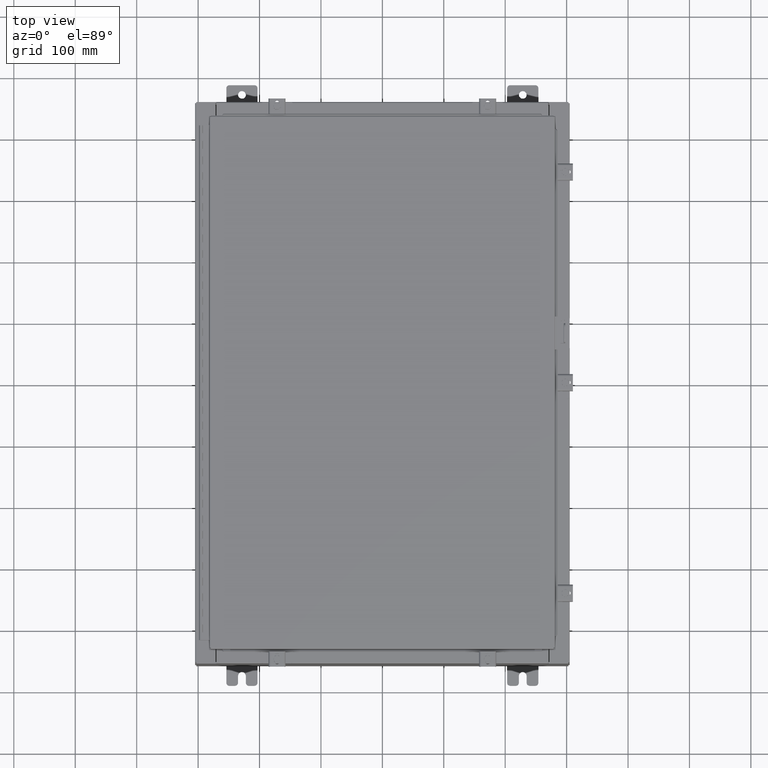
[diagram: clean part render]
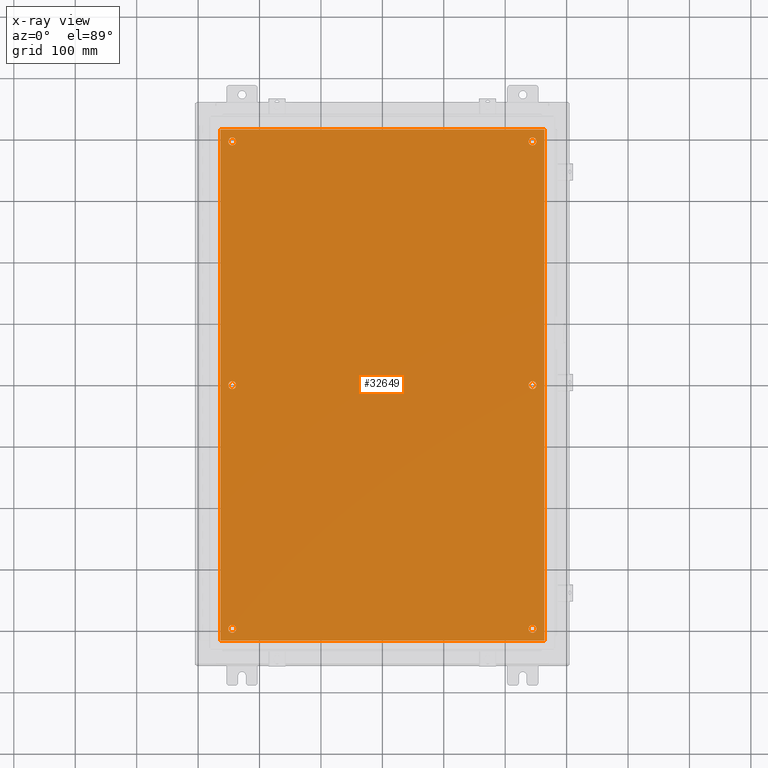
[diagram: x-ray — body ghosted, one internal face saturated and labeled with its STEP entity id]
A machine part, top view, then the same camera in x-ray: the body is ghosted and one INTERNAL B-rep face — a face not visible from any outside direction — is saturated and labeled: STEP entity #32649.
In plain terms, the highlighted planar face has unit normal (0, 0, -1).
Its self-contained STEP definition (entity closure, byte-faithful):
#27 = DIRECTION ( 'NONE',  ( -0.0000000000000000000, -0.0000000000000000000, 1.000000000000000000 ) ) ;
#214 = CARTESIAN_POINT ( 'NONE',  ( -9.625000000000007100, 15.62500000000000200, -0.1040000000000000400 ) ) ;
#269 = VERTEX_POINT ( 'NONE', #41505 ) ;
#471 = DIRECTION ( 'NONE',  ( -0.0000000000000000000, -0.0000000000000000000, 1.000000000000000000 ) ) ;
#501 = EDGE_CURVE ( 'NONE', #1906, #40323, #20869, .T. ) ;
#764 = CARTESIAN_POINT ( 'NONE',  ( -9.375000000000007100, 15.62500000000000200, -0.1040000000000000400 ) ) ;
#1237 = CARTESIAN_POINT ( 'NONE',  ( 9.875000000000007100, 2.620299400612403500E-015, -0.1040000000000000400 ) ) ;
#1278 = ORIENTED_EDGE ( 'NONE', *, *, #18711, .T. ) ;
#1472 = VERTEX_POINT ( 'NONE', #16004 ) ;
#1502 = CIRCLE ( 'NONE', #35119, 0.2500000000000008900 ) ;
#1885 = AXIS2_PLACEMENT_3D ( 'NONE', #19715, #27, #23010 ) ;
#1906 = VERTEX_POINT ( 'NONE', #17665 ) ;
#2078 = CARTESIAN_POINT ( 'NONE',  ( -9.875000000000005300, 2.934704822324310800E-016, -0.1040000000000000400 ) ) ;
#2215 = DIRECTION ( 'NONE',  ( -0.0000000000000000000, -0.0000000000000000000, 1.000000000000000000 ) ) ;
#2361 = EDGE_LOOP ( 'NONE', ( #29940, #34150, #5531, #32927 ) ) ;
#2452 = DIRECTION ( 'NONE',  ( -1.000000000000000000, 0.0000000000000000000, 0.0000000000000000000 ) ) ;
#2496 = CARTESIAN_POINT ( 'NONE',  ( -10.38300000000000100, 16.38300000000000300, -0.1039999999999988200 ) ) ;
#2713 = EDGE_LOOP ( 'NONE', ( #39928, #5752 ) ) ;
#3042 = PLANE ( 'NONE',  #24262 ) ;
#3536 = DIRECTION ( 'NONE',  ( -1.000000000000000000, 0.0000000000000000000, 0.0000000000000000000 ) ) ;
#3804 = EDGE_CURVE ( 'NONE', #1472, #22614, #17060, .T. ) ;
#4023 = VERTEX_POINT ( 'NONE', #16526 ) ;
#4193 = CARTESIAN_POINT ( 'NONE',  ( -9.625000000000007100, 15.62500000000000200, -0.1040000000000000400 ) ) ;
#4306 = ORIENTED_EDGE ( 'NONE', *, *, #40174, .T. ) ;
#4681 = CIRCLE ( 'NONE', #23019, 0.2499999999999998100 ) ;
#4744 = LINE ( 'NONE', #6897, #21178 ) ;
#5501 = VERTEX_POINT ( 'NONE', #41474 ) ;
#5513 = CARTESIAN_POINT ( 'NONE',  ( -10.38300000000000100, -16.38299999999999600, -0.1040000000000008600 ) ) ;
#5518 = EDGE_CURVE ( 'NONE', #21121, #39907, #1502, .T. ) ;
#5531 = ORIENTED_EDGE ( 'NONE', *, *, #39052, .F. ) ;
#5752 = ORIENTED_EDGE ( 'NONE', *, *, #40925, .T. ) ;
#5987 = VERTEX_POINT ( 'NONE', #20855 ) ;
#5995 = AXIS2_PLACEMENT_3D ( 'NONE', #19644, #42662, #22951 ) ;
#6209 = ORIENTED_EDGE ( 'NONE', *, *, #15000, .T. ) ;
#6344 = DIRECTION ( 'NONE',  ( 0.0000000000000000000, 0.0000000000000000000, -1.000000000000000000 ) ) ;
#6488 = EDGE_LOOP ( 'NONE', ( #32252, #42549 ) ) ;
#6897 = CARTESIAN_POINT ( 'NONE',  ( 10.50000000000000400, 16.38299999999999900, -0.1040000000000008600 ) ) ;
#6990 = EDGE_CURVE ( 'NONE', #40323, #1906, #42029, .T. ) ;
#7076 = CARTESIAN_POINT ( 'NONE',  ( 9.375000000000007100, 2.650915570591087300E-015, -0.1040000000000000400 ) ) ;
#7332 = AXIS2_PLACEMENT_3D ( 'NONE', #14475, #37442, #17802 ) ;
#7498 = DIRECTION ( 'NONE',  ( -1.000000000000000000, 0.0000000000000000000, 0.0000000000000000000 ) ) ;
#7661 = FACE_BOUND ( 'NONE', #38178, .T. ) ;
#8055 = EDGE_CURVE ( 'NONE', #5501, #17191, #29708, .T. ) ;
#8177 = DIRECTION ( 'NONE',  ( -0.0000000000000000000, -0.0000000000000000000, 1.000000000000000000 ) ) ;
#8695 = FACE_BOUND ( 'NONE', #6488, .T. ) ;
#9105 = DIRECTION ( 'NONE',  ( 0.0000000000000000000, -1.000000000000000000, 0.0000000000000000000 ) ) ;
#9597 = EDGE_CURVE ( 'NONE', #4023, #24797, #14655, .T. ) ;
#9841 = CARTESIAN_POINT ( 'NONE',  ( -9.625000000000005300, 2.628543122537473900E-016, -0.1040000000000000400 ) ) ;
#10199 = DIRECTION ( 'NONE',  ( -1.000000000000000000, -0.0000000000000000000, -0.0000000000000000000 ) ) ;
#10758 = CARTESIAN_POINT ( 'NONE',  ( -9.625000000000007100, -15.62500000000000200, -0.1040000000000000400 ) ) ;
#10955 = EDGE_CURVE ( 'NONE', #24797, #1472, #17181, .T. ) ;
#11063 = CARTESIAN_POINT ( 'NONE',  ( 9.625000000000007100, 2.620299400612403500E-015, -0.1040000000000000400 ) ) ;
#12123 = DIRECTION ( 'NONE',  ( 0.0000000000000000000, 1.000000000000000000, 0.0000000000000000000 ) ) ;
#13117 = EDGE_LOOP ( 'NONE', ( #1278, #6209 ) ) ;
#13162 = DIRECTION ( 'NONE',  ( -1.000000000000000000, 0.0000000000000000000, 0.0000000000000000000 ) ) ;
#13594 = CIRCLE ( 'NONE', #18504, 0.2499999999999998100 ) ;
#14073 = DIRECTION ( 'NONE',  ( -1.000000000000000000, 0.0000000000000000000, 0.0000000000000000000 ) ) ;
#14116 = AXIS2_PLACEMENT_3D ( 'NONE', #10758, #33747, #14073 ) ;
#14365 = DIRECTION ( 'NONE',  ( -1.000000000000000000, 0.0000000000000000000, 0.0000000000000000000 ) ) ;
#14475 = CARTESIAN_POINT ( 'NONE',  ( 9.625000000000007100, 15.62500000000000200, -0.1040000000000000400 ) ) ;
#14655 = LINE ( 'NONE', #2496, #23379 ) ;
#14770 = ORIENTED_EDGE ( 'NONE', *, *, #6990, .T. ) ;
#15000 = EDGE_CURVE ( 'NONE', #24105, #42432, #13594, .T. ) ;
#15130 = EDGE_CURVE ( 'NONE', #42190, #269, #18194, .T. ) ;
#16004 = CARTESIAN_POINT ( 'NONE',  ( 10.38300000000000100, -16.38299999999999600, -0.1040000000000008600 ) ) ;
#16413 = FACE_BOUND ( 'NONE', #20166, .T. ) ;
#16526 = CARTESIAN_POINT ( 'NONE',  ( -10.38300000000000100, 16.38300000000000300, -0.1039999999999988200 ) ) ;
#16935 = EDGE_CURVE ( 'NONE', #26938, #5987, #4681, .T. ) ;
#17060 = LINE ( 'NONE', #28462, #41241 ) ;
#17181 = LINE ( 'NONE', #26969, #42395 ) ;
#17191 = VERTEX_POINT ( 'NONE', #764 ) ;
#17427 = FACE_BOUND ( 'NONE', #28388, .T. ) ;
#17554 = CARTESIAN_POINT ( 'NONE',  ( 9.375000000000007100, 15.62500000000000200, -0.1040000000000000400 ) ) ;
#17665 = CARTESIAN_POINT ( 'NONE',  ( 9.875000000000007100, 15.62500000000000200, -0.1040000000000000400 ) ) ;
#17802 = DIRECTION ( 'NONE',  ( -1.000000000000000000, 0.0000000000000000000, 0.0000000000000000000 ) ) ;
#18194 = CIRCLE ( 'NONE', #36118, 0.2500000000000008900 ) ;
#18504 = AXIS2_PLACEMENT_3D ( 'NONE', #11063, #34035, #14365 ) ;
#18638 = CIRCLE ( 'NONE', #39652, 0.2500000000000008900 ) ;
#18711 = EDGE_CURVE ( 'NONE', #42432, #24105, #24038, .T. ) ;
#19067 = ORIENTED_EDGE ( 'NONE', *, *, #8055, .T. ) ;
#19644 = CARTESIAN_POINT ( 'NONE',  ( 9.625000000000007100, 15.62500000000000200, -0.1040000000000000400 ) ) ;
#19715 = CARTESIAN_POINT ( 'NONE',  ( 9.625000000000007100, 2.620299400612403500E-015, -0.1040000000000000400 ) ) ;
#20160 = CARTESIAN_POINT ( 'NONE',  ( 9.625000000000007100, -15.62500000000000200, -0.1040000000000000400 ) ) ;
#20166 = EDGE_LOOP ( 'NONE', ( #40858, #14770 ) ) ;
#20855 = CARTESIAN_POINT ( 'NONE',  ( 9.875000000000007100, -15.62500000000000200, -0.1040000000000000400 ) ) ;
#20869 = CIRCLE ( 'NONE', #7332, 0.2499999999999998100 ) ;
#21121 = VERTEX_POINT ( 'NONE', #26851 ) ;
#21178 = VECTOR ( 'NONE', #10199, 39.37007874015748100 ) ;
#21358 = CARTESIAN_POINT ( 'NONE',  ( 9.375000000000007100, -15.62500000000000200, -0.1040000000000000400 ) ) ;
#21910 = CARTESIAN_POINT ( 'NONE',  ( -9.625000000000005300, 2.628543122537473900E-016, -0.1040000000000000400 ) ) ;
#22126 = DIRECTION ( 'NONE',  ( -0.0000000000000000000, -0.0000000000000000000, 1.000000000000000000 ) ) ;
#22550 = AXIS2_PLACEMENT_3D ( 'NONE', #9841, #32828, #13162 ) ;
#22614 = VERTEX_POINT ( 'NONE', #28405 ) ;
#22951 = DIRECTION ( 'NONE',  ( -1.000000000000000000, 0.0000000000000000000, 0.0000000000000000000 ) ) ;
#23010 = DIRECTION ( 'NONE',  ( -1.000000000000000000, 0.0000000000000000000, 0.0000000000000000000 ) ) ;
#23019 = AXIS2_PLACEMENT_3D ( 'NONE', #27863, #8177, #31176 ) ;
#23184 = DIRECTION ( 'NONE',  ( -0.0000000000000000000, -0.0000000000000000000, 1.000000000000000000 ) ) ;
#23379 = VECTOR ( 'NONE', #9105, 39.37007874015748100 ) ;
#23456 = DIRECTION ( 'NONE',  ( -1.000000000000000000, 0.0000000000000000000, 0.0000000000000000000 ) ) ;
#24038 = CIRCLE ( 'NONE', #1885, 0.2499999999999998100 ) ;
#24105 = VERTEX_POINT ( 'NONE', #7076 ) ;
#24262 = AXIS2_PLACEMENT_3D ( 'NONE', #42270, #6344, #29321 ) ;
#24797 = VERTEX_POINT ( 'NONE', #5513 ) ;
#25121 = FACE_BOUND ( 'NONE', #13117, .T. ) ;
#25177 = DIRECTION ( 'NONE',  ( -1.000000000000000000, 0.0000000000000000000, 0.0000000000000000000 ) ) ;
#25590 = ORIENTED_EDGE ( 'NONE', *, *, #30771, .T. ) ;
#26118 = CARTESIAN_POINT ( 'NONE',  ( -9.375000000000007100, -15.62500000000000200, -0.1040000000000000400 ) ) ;
#26159 = FACE_BOUND ( 'NONE', #2713, .T. ) ;
#26851 = CARTESIAN_POINT ( 'NONE',  ( -9.375000000000005300, 2.628543122537473900E-016, -0.1040000000000000400 ) ) ;
#26938 = VERTEX_POINT ( 'NONE', #21358 ) ;
#26969 = CARTESIAN_POINT ( 'NONE',  ( -10.50000000000000200, -16.38299999999999600, -0.1040000000000008600 ) ) ;
#27169 = DIRECTION ( 'NONE',  ( -0.0000000000000000000, -0.0000000000000000000, 1.000000000000000000 ) ) ;
#27863 = CARTESIAN_POINT ( 'NONE',  ( 9.625000000000007100, -15.62500000000000200, -0.1040000000000000400 ) ) ;
#27871 = CIRCLE ( 'NONE', #22550, 0.2500000000000008900 ) ;
#28388 = EDGE_LOOP ( 'NONE', ( #4306, #42585 ) ) ;
#28405 = CARTESIAN_POINT ( 'NONE',  ( 10.38300000000000100, 16.38300000000000300, -0.1040000000000008600 ) ) ;
#28462 = CARTESIAN_POINT ( 'NONE',  ( 10.38300000000000100, -16.38299999999999600, -0.1040000000000008600 ) ) ;
#29321 = DIRECTION ( 'NONE',  ( -1.000000000000000000, 0.0000000000000000000, -0.0000000000000000000 ) ) ;
#29708 = CIRCLE ( 'NONE', #36537, 0.2500000000000008900 ) ;
#29940 = ORIENTED_EDGE ( 'NONE', *, *, #10955, .F. ) ;
#30278 = DIRECTION ( 'NONE',  ( 1.000000000000000000, -0.0000000000000000000, -0.0000000000000000000 ) ) ;
#30771 = EDGE_CURVE ( 'NONE', #17191, #5501, #18638, .T. ) ;
#31176 = DIRECTION ( 'NONE',  ( -1.000000000000000000, 0.0000000000000000000, 0.0000000000000000000 ) ) ;
#31372 = CIRCLE ( 'NONE', #38593, 0.2499999999999998100 ) ;
#32252 = ORIENTED_EDGE ( 'NONE', *, *, #5518, .T. ) ;
#32649 = ADVANCED_FACE ( 'NONE', ( #25121, #8695, #26159, #17427, #16413, #7661, #41614 ), #3042, .T. ) ;
#32828 = DIRECTION ( 'NONE',  ( -0.0000000000000000000, -0.0000000000000000000, 1.000000000000000000 ) ) ;
#32927 = ORIENTED_EDGE ( 'NONE', *, *, #3804, .F. ) ;
#33747 = DIRECTION ( 'NONE',  ( -0.0000000000000000000, -0.0000000000000000000, 1.000000000000000000 ) ) ;
#34035 = DIRECTION ( 'NONE',  ( -0.0000000000000000000, -0.0000000000000000000, 1.000000000000000000 ) ) ;
#34150 = ORIENTED_EDGE ( 'NONE', *, *, #9597, .F. ) ;
#35119 = AXIS2_PLACEMENT_3D ( 'NONE', #21910, #2215, #25177 ) ;
#36118 = AXIS2_PLACEMENT_3D ( 'NONE', #41824, #22126, #2452 ) ;
#36537 = AXIS2_PLACEMENT_3D ( 'NONE', #4193, #27169, #7498 ) ;
#37442 = DIRECTION ( 'NONE',  ( -0.0000000000000000000, -0.0000000000000000000, 1.000000000000000000 ) ) ;
#37607 = EDGE_CURVE ( 'NONE', #39907, #21121, #27871, .T. ) ;
#38178 = EDGE_LOOP ( 'NONE', ( #25590, #19067 ) ) ;
#38593 = AXIS2_PLACEMENT_3D ( 'NONE', #20160, #471, #23456 ) ;
#39052 = EDGE_CURVE ( 'NONE', #22614, #4023, #4744, .T. ) ;
#39652 = AXIS2_PLACEMENT_3D ( 'NONE', #214, #23184, #3536 ) ;
#39907 = VERTEX_POINT ( 'NONE', #2078 ) ;
#39928 = ORIENTED_EDGE ( 'NONE', *, *, #15130, .T. ) ;
#40174 = EDGE_CURVE ( 'NONE', #5987, #26938, #31372, .T. ) ;
#40323 = VERTEX_POINT ( 'NONE', #17554 ) ;
#40573 = CIRCLE ( 'NONE', #14116, 0.2500000000000008900 ) ;
#40858 = ORIENTED_EDGE ( 'NONE', *, *, #501, .T. ) ;
#40925 = EDGE_CURVE ( 'NONE', #269, #42190, #40573, .T. ) ;
#41241 = VECTOR ( 'NONE', #12123, 39.37007874015748100 ) ;
#41474 = CARTESIAN_POINT ( 'NONE',  ( -9.875000000000007100, 15.62500000000000200, -0.1040000000000000400 ) ) ;
#41505 = CARTESIAN_POINT ( 'NONE',  ( -9.875000000000007100, -15.62500000000000200, -0.1040000000000000400 ) ) ;
#41614 = FACE_OUTER_BOUND ( 'NONE', #2361, .T. ) ;
#41824 = CARTESIAN_POINT ( 'NONE',  ( -9.625000000000007100, -15.62500000000000200, -0.1040000000000000400 ) ) ;
#42029 = CIRCLE ( 'NONE', #5995, 0.2499999999999998100 ) ;
#42190 = VERTEX_POINT ( 'NONE', #26118 ) ;
#42270 = CARTESIAN_POINT ( 'NONE',  ( 0.0000000000000000000, 0.0000000000000000000, -0.1040000000000000400 ) ) ;
#42395 = VECTOR ( 'NONE', #30278, 39.37007874015748100 ) ;
#42432 = VERTEX_POINT ( 'NONE', #1237 ) ;
#42549 = ORIENTED_EDGE ( 'NONE', *, *, #37607, .T. ) ;
#42585 = ORIENTED_EDGE ( 'NONE', *, *, #16935, .T. ) ;
#42662 = DIRECTION ( 'NONE',  ( -0.0000000000000000000, -0.0000000000000000000, 1.000000000000000000 ) ) ;